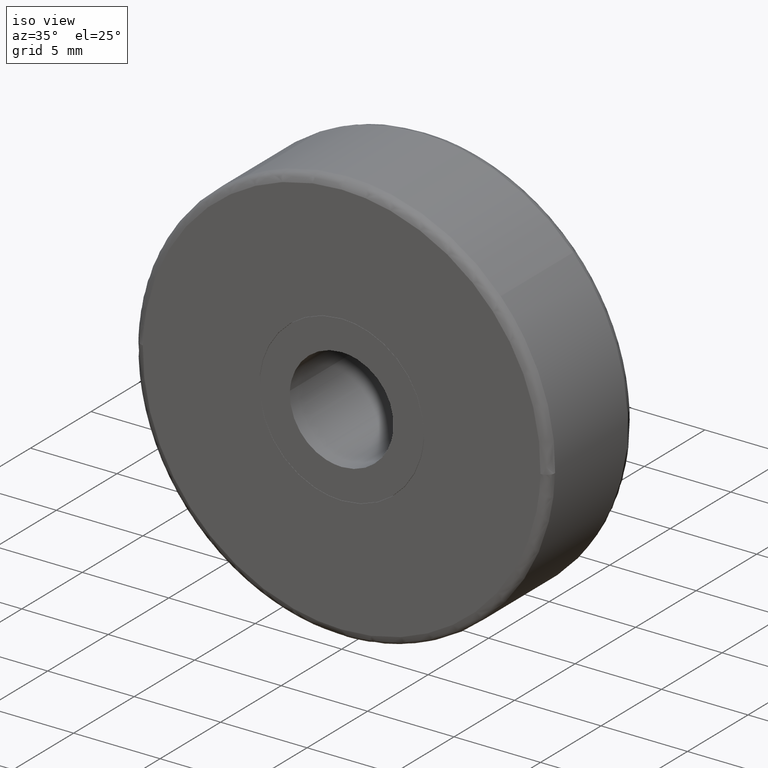
[diagram: clean part render]
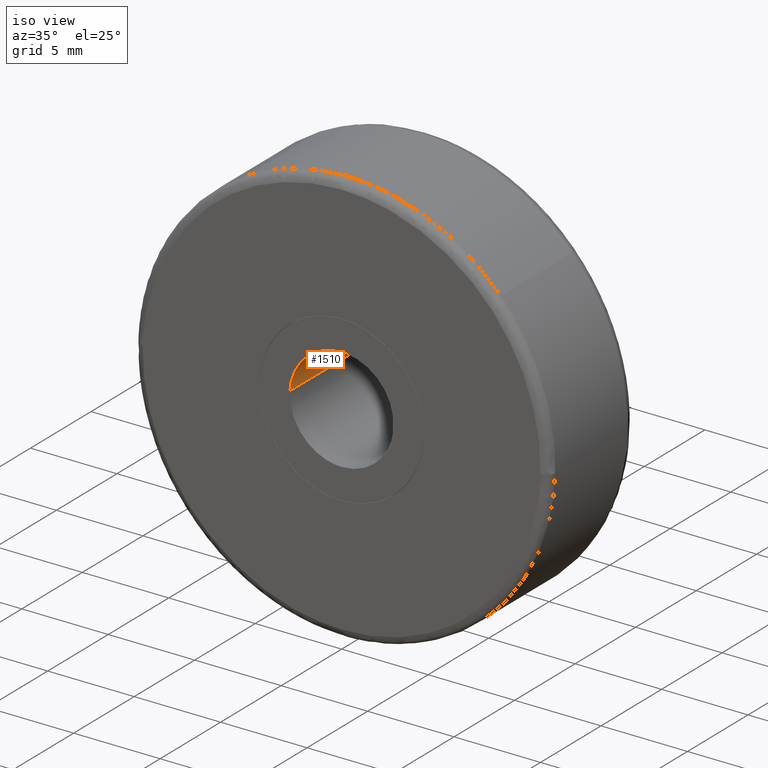
[diagram: same view with one face highlighted and labeled with its STEP entity id]
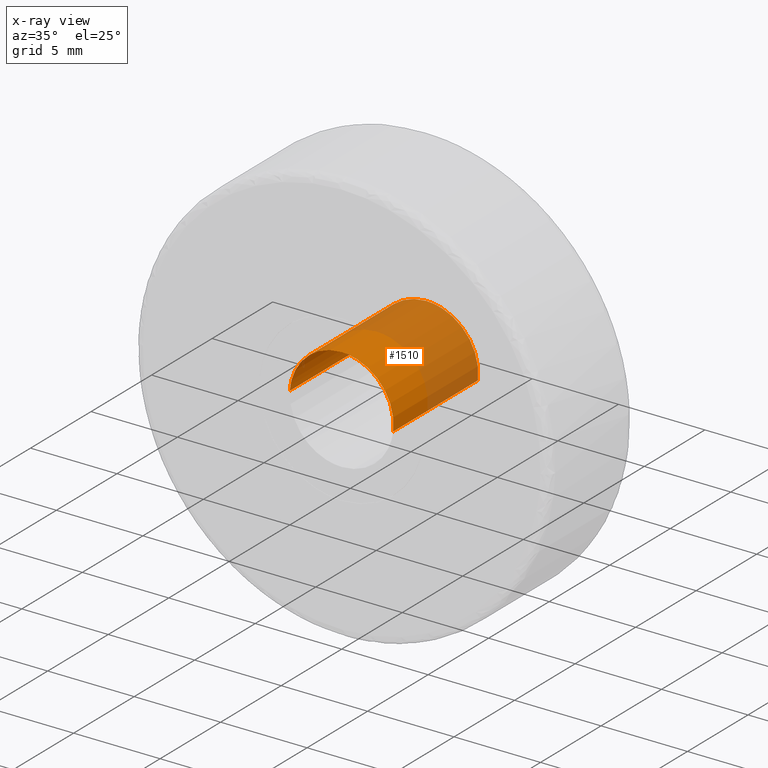
[diagram: x-ray of the same camera — body ghosted, the highlighted face saturated]
A machine part, iso view. The second image highlights one B-rep face of the part: STEP entity #1510.
The next image is the same camera in x-ray: the body ghosted, the highlighted face saturated — about 55% of this face is hidden behind the body in this view.
In plain terms, the highlighted face is a freeform B-spline surface patch.
Its self-contained STEP definition (entity closure, byte-faithful):
#1404=CARTESIAN_POINT('',(2.973773558196773,7.175000000000001,-0.398312638692872));
#1405=CARTESIAN_POINT('',(2.976408477403389,7.175000000000001,-0.376145342221841));
#1406=CARTESIAN_POINT('',(2.989162846345817,7.175000000000001,-0.268844185913933));
#1407=CARTESIAN_POINT('',(2.994404395265600,7.175000000000001,-0.183145618604571));
#1408=CARTESIAN_POINT('',(3.177550013870171,7.175000000000001,2.811258776661029));
#1409=CARTESIAN_POINT('',(0.183145618604571,7.175000000000001,2.994404395265600));
#1410=CARTESIAN_POINT('',(-2.811258776661029,7.175000000000001,3.177550013870171));
#1411=CARTESIAN_POINT('',(-2.995721536877603,7.175000000000003,0.161610543606796));
#1412=CARTESIAN_POINT('',(-2.997030854452375,7.175000000000003,0.140203390486942));
#1413=CARTESIAN_POINT('',(2.973773558196773,-0.179375000000001,-0.398312638692872));
#1414=CARTESIAN_POINT('',(2.976408477403389,-0.179375000000001,-0.376145342221841));
#1415=CARTESIAN_POINT('',(2.989162846345817,-0.179375000000001,-0.268844185913933));
#1416=CARTESIAN_POINT('',(2.994404395265600,-0.179375000000001,-0.183145618604571));
#1417=CARTESIAN_POINT('',(3.177550013870171,-0.179375000000001,2.811258776661029));
#1418=CARTESIAN_POINT('',(0.183145618604571,-0.179375000000001,2.994404395265600));
#1419=CARTESIAN_POINT('',(-2.811258776661029,-0.179375000000001,3.177550013870171));
#1420=CARTESIAN_POINT('',(-2.995721536877603,-0.179375000000001,0.161610543606796));
#1421=CARTESIAN_POINT('',(-2.997030854452375,-0.179375000000001,0.140203390486942));
#1429=(BOUNDED_SURFACE()B_SPLINE_SURFACE(2,1,((#1404,#1413),(#1405,#1414),(#1406,#1415),(#1407,#1416),(#1408,#1417),(#1409,#1418),(#1410,#1419),(#1411,#1420),(#1412,#1421)),.UNSPECIFIED.,.F.,.F.,.U.)B_SPLINE_SURFACE_WITH_KNOTS((3,1,2,2,1,3),(2,2),(0.0,0.050699765886178,0.249522275825264,5.220085024302404,10.190647772779540,10.241352932965610),(0.0,7.354375000000003),.UNSPECIFIED.)GEOMETRIC_REPRESENTATION_ITEM()RATIONAL_B_SPLINE_SURFACE(((0.972008778061515,0.972008778061515),(0.974757289428321,0.974757289428321),(0.988284271247462,0.988284271247462),(1.0,1.0),(0.707106781186548,0.707106781186548),(1.0,1.0),(0.707106781186548,0.707106781186548),(1.002987830217393,1.002987830217393),(1.005975660434786,1.005975660434786)))REPRESENTATION_ITEM('')SURFACE());
#1430=CARTESIAN_POINT('',(2.979028579089628,7.0,-0.354102703981811));
#1431=VERTEX_POINT('',#1430);
#1432=CARTESIAN_POINT('',(0.0,7.0,3.0));
#1433=VERTEX_POINT('',#1432);
#1434=CARTESIAN_POINT('',(2.979028579089627,7.000000000000001,-0.354102703981811));
#1435=CARTESIAN_POINT('',(3.000000000000000,7.0,-0.177672358967388));
#1436=CARTESIAN_POINT('',(3.0,7.0,-1.642359E-016));
#1437=CARTESIAN_POINT('',(3.0,6.999999999999999,3.0));
#1438=CARTESIAN_POINT('',(0.0,7.0,3.0));
#1446=(BOUNDED_CURVE()B_SPLINE_CURVE(2,(#1434,#1435,#1436,#1437,#1438),.UNSPECIFIED.,.F.,.U.)B_SPLINE_CURVE_WITH_KNOTS((3,2,3),(0.229562473514335,0.250000000000000,0.500000000000000),.UNSPECIFIED.)CURVE()GEOMETRIC_REPRESENTATION_ITEM()RATIONAL_B_SPLINE_CURVE((0.956026754185320,0.976055948332114,1.0,0.707106781186548,1.0))REPRESENTATION_ITEM(''));
#1447=EDGE_CURVE('',#1431,#1433,#1446,.T.);
#1448=ORIENTED_EDGE('',*,*,#1447,.F.);
#1449=CARTESIAN_POINT('',(2.979028579089628,-7.298449E-016,-0.354102703981811));
#1450=VERTEX_POINT('',#1449);
#1451=CARTESIAN_POINT('',(2.979028579089628,7.0,-0.354102703981811));
#1452=CARTESIAN_POINT('',(2.979028579089628,-7.298449E-016,-0.354102703981811));
#1453=QUASI_UNIFORM_CURVE('',1,(#1451,#1452),.UNSPECIFIED.,.F.,.U.);
#1454=EDGE_CURVE('',#1431,#1450,#1453,.T.);
#1455=ORIENTED_EDGE('',*,*,#1454,.T.);
#1456=CARTESIAN_POINT('',(0.0,-5.510729E-016,3.0));
#1457=VERTEX_POINT('',#1456);
#1458=CARTESIAN_POINT('',(2.979028579089627,-7.298449E-016,-0.354102703981811));
#1459=CARTESIAN_POINT('',(3.000000000000000,-5.510729E-016,-0.177672358967388));
#1460=CARTESIAN_POINT('',(3.0,-5.510729E-016,-1.642359E-016));
#1461=CARTESIAN_POINT('',(3.0,-5.510729E-016,3.0));
#1462=CARTESIAN_POINT('',(0.0,-5.510729E-016,3.0));
#1470=(BOUNDED_CURVE()B_SPLINE_CURVE(2,(#1458,#1459,#1460,#1461,#1462),.UNSPECIFIED.,.F.,.U.)B_SPLINE_CURVE_WITH_KNOTS((3,2,3),(0.229562473514335,0.250000000000000,0.500000000000000),.UNSPECIFIED.)CURVE()GEOMETRIC_REPRESENTATION_ITEM()RATIONAL_B_SPLINE_CURVE((0.956026754185320,0.976055948332114,1.0,0.707106781186548,1.0))REPRESENTATION_ITEM(''));
#1471=EDGE_CURVE('',#1450,#1457,#1470,.T.);
#1472=ORIENTED_EDGE('',*,*,#1471,.T.);
#1473=CARTESIAN_POINT('',(-2.994404672965695,-1.593926E-015,0.183141078135179));
#1474=VERTEX_POINT('',#1473);
#1475=CARTESIAN_POINT('',(0.0,-5.510729E-016,3.0));
#1476=CARTESIAN_POINT('',(-2.822122487945013,-5.510729E-016,3.0));
#1477=CARTESIAN_POINT('',(-2.994404672965694,-1.593926E-015,0.183141078135179));
#1485=(BOUNDED_CURVE()B_SPLINE_CURVE(2,(#1475,#1476,#1477),.UNSPECIFIED.,.F.,.U.)B_SPLINE_CURVE_WITH_KNOTS((3,3),(0.500000000000000,0.739333223877829),.UNSPECIFIED.)CURVE()GEOMETRIC_REPRESENTATION_ITEM()RATIONAL_B_SPLINE_CURVE((1.0,0.719603686757688,0.976072602409297))REPRESENTATION_ITEM(''));
#1486=EDGE_CURVE('',#1457,#1474,#1485,.T.);
#1487=ORIENTED_EDGE('',*,*,#1486,.T.);
#1488=CARTESIAN_POINT('',(-2.994404676346416,6.999999999999965,0.183141022858116));
#1489=VERTEX_POINT('',#1488);
#1490=CARTESIAN_POINT('',(-2.994404676346416,6.999999999999965,0.183141022858116));
#1491=CARTESIAN_POINT('',(-2.994404672965695,-1.593926E-015,0.183141078135179));
#1492=QUASI_UNIFORM_CURVE('',1,(#1490,#1491),.UNSPECIFIED.,.F.,.U.);
#1493=EDGE_CURVE('',#1489,#1474,#1492,.T.);
#1494=ORIENTED_EDGE('',*,*,#1493,.F.);
#1495=CARTESIAN_POINT('',(0.0,7.0,3.0));
#1496=CARTESIAN_POINT('',(-2.822122540139069,6.999999999999999,2.999999999999999));
#1497=CARTESIAN_POINT('',(-2.994404676346416,6.999999999999965,0.183141022858116));
#1505=(BOUNDED_CURVE()B_SPLINE_CURVE(2,(#1495,#1496,#1497),.UNSPECIFIED.,.F.,.U.)B_SPLINE_CURVE_WITH_KNOTS((3,3),(0.500000000000000,0.739333227063064),.UNSPECIFIED.)CURVE()GEOMETRIC_REPRESENTATION_ITEM()RATIONAL_B_SPLINE_CURVE((1.0,0.719603683025953,0.976072609235878))REPRESENTATION_ITEM(''));
#1506=EDGE_CURVE('',#1433,#1489,#1505,.T.);
#1507=ORIENTED_EDGE('',*,*,#1506,.F.);
#1508=EDGE_LOOP('',(#1448,#1455,#1472,#1487,#1494,#1507));
#1509=FACE_OUTER_BOUND('',#1508,.T.);
#1510=ADVANCED_FACE('',(#1509),#1429,.F.);